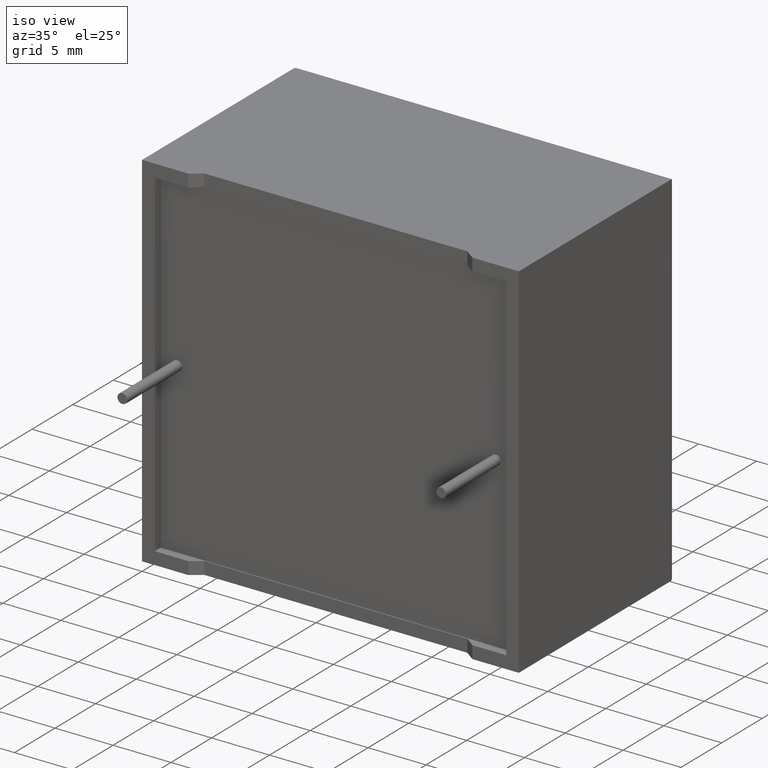
[diagram: clean part render]
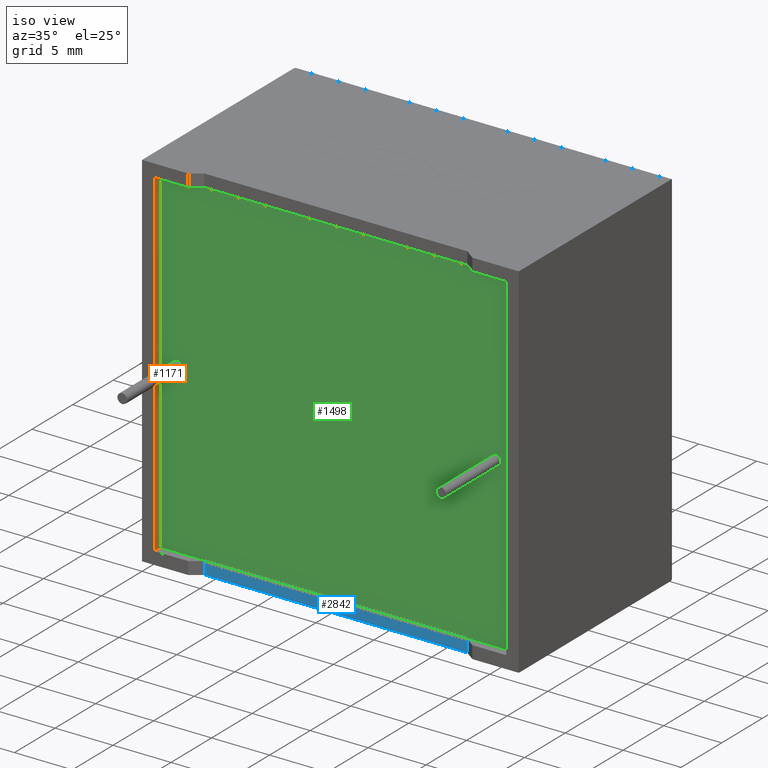
[diagram: same view with three faces highlighted in distinct colors, each labeled with its STEP entity id]
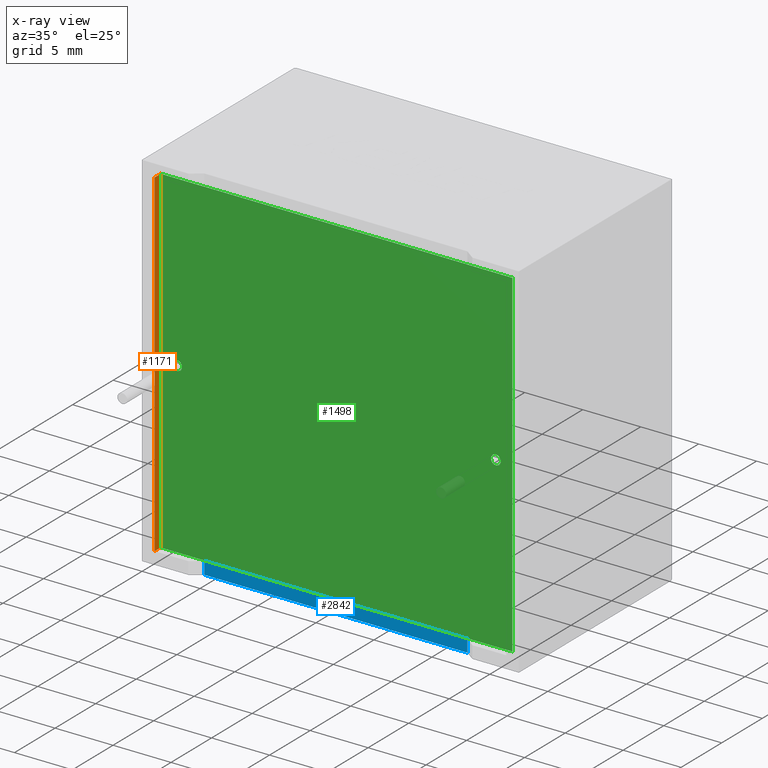
[diagram: x-ray of the same camera — body ghosted, the three highlighted faces saturated]
A machine part, iso view with three faces highlighted in distinct colors.
The next image is the same camera in x-ray (body ghosted, the three faces saturated) — at least one of them is partly hidden behind the body in this view.
Their STEP definitions:

[orange] entity #1171 — the highlighted planar face has unit normal (-1, 0, 0).
#64 = VERTEX_POINT ( 'NONE', #1756 ) ;
#82 = VECTOR ( 'NONE', #739, 1000.000000000000000 ) ;
#83 = VERTEX_POINT ( 'NONE', #2488 ) ;
#119 = ORIENTED_EDGE ( 'NONE', *, *, #324, .F. ) ;
#133 = FACE_OUTER_BOUND ( 'NONE', #1130, .T. ) ;
#219 = AXIS2_PLACEMENT_3D ( 'NONE', #253, #720, #938 ) ;
#253 = CARTESIAN_POINT ( 'NONE',  ( 1.083333225000000100, 0.7500000000000000000, 30.21666677499999700 ) ) ;
#269 = CARTESIAN_POINT ( 'NONE',  ( 1.083333225000000100, 0.0000000000000000000, 30.21666677499999700 ) ) ;
#280 = EDGE_CURVE ( 'NONE', #2845, #64, #1138, .T. ) ;
#324 = EDGE_CURVE ( 'NONE', #83, #64, #1364, .T. ) ;
#391 = LINE ( 'NONE', #2105, #1760 ) ;
#535 = CARTESIAN_POINT ( 'NONE',  ( 1.083333225000000100, 0.7500000000000000000, 30.21666677499999700 ) ) ;
#642 = LINE ( 'NONE', #535, #82 ) ;
#660 = VECTOR ( 'NONE', #2010, 1000.000000000000000 ) ;
#720 = DIRECTION ( 'NONE',  ( -1.000000000000000000, 0.0000000000000000000, 0.0000000000000000000 ) ) ;
#739 = DIRECTION ( 'NONE',  ( -0.0000000000000000000, -1.000000000000000000, -0.0000000000000000000 ) ) ;
#938 = DIRECTION ( 'NONE',  ( 0.0000000000000000000, 0.0000000000000000000, 1.000000000000000000 ) ) ;
#967 = ORIENTED_EDGE ( 'NONE', *, *, #1086, .F. ) ;
#1086 = EDGE_CURVE ( 'NONE', #2587, #83, #391, .T. ) ;
#1130 = EDGE_LOOP ( 'NONE', ( #1185, #119, #967, #2841 ) ) ;
#1138 = LINE ( 'NONE', #1724, #660 ) ;
#1171 = ADVANCED_FACE ( 'NONE', ( #133 ), #1664, .F. ) ;
#1185 = ORIENTED_EDGE ( 'NONE', *, *, #280, .T. ) ;
#1364 = LINE ( 'NONE', #1995, #1766 ) ;
#1664 = PLANE ( 'NONE',  #219 ) ;
#1724 = CARTESIAN_POINT ( 'NONE',  ( 1.083333225000000100, 0.0000000000000000000, 30.21666677499999700 ) ) ;
#1756 = CARTESIAN_POINT ( 'NONE',  ( 1.083333225000000100, 0.0000000000000000000, 1.083333225000000100 ) ) ;
#1760 = VECTOR ( 'NONE', #2566, 1000.000000000000000 ) ;
#1766 = VECTOR ( 'NONE', #2483, 1000.000000000000000 ) ;
#1952 = EDGE_CURVE ( 'NONE', #2587, #2845, #642, .T. ) ;
#1995 = CARTESIAN_POINT ( 'NONE',  ( 1.083333225000000100, 0.7500000000000000000, 1.083333225000000100 ) ) ;
#2010 = DIRECTION ( 'NONE',  ( 0.0000000000000000000, 0.0000000000000000000, -1.000000000000000000 ) ) ;
#2105 = CARTESIAN_POINT ( 'NONE',  ( 1.083333225000000100, 0.7500000000000000000, 30.21666677499999700 ) ) ;
#2244 = CARTESIAN_POINT ( 'NONE',  ( 1.083333225000000100, 0.7500000000000000000, 30.21666677499999700 ) ) ;
#2483 = DIRECTION ( 'NONE',  ( -0.0000000000000000000, -1.000000000000000000, -0.0000000000000000000 ) ) ;
#2488 = CARTESIAN_POINT ( 'NONE',  ( 1.083333225000000100, 0.7500000000000000000, 1.083333225000000100 ) ) ;
#2566 = DIRECTION ( 'NONE',  ( 0.0000000000000000000, 0.0000000000000000000, -1.000000000000000000 ) ) ;
#2587 = VERTEX_POINT ( 'NONE', #2244 ) ;
#2841 = ORIENTED_EDGE ( 'NONE', *, *, #1952, .T. ) ;
#2845 = VERTEX_POINT ( 'NONE', #269 ) ;

[blue] entity #2842 — the highlighted planar face has unit normal (-0, 1, 0).
#8 = EDGE_CURVE ( 'NONE', #2476, #2908, #207, .T. ) ;
#14 = DIRECTION ( 'NONE',  ( -0.0000000000000000000, -0.0000000000000000000, 1.000000000000000000 ) ) ;
#39 = DIRECTION ( 'NONE',  ( -1.242093791113138400E-016, 1.000000000000000000, 0.0000000000000000000 ) ) ;
#158 = LINE ( 'NONE', #702, #384 ) ;
#207 = LINE ( 'NONE', #1478, #2787 ) ;
#261 = ORIENTED_EDGE ( 'NONE', *, *, #8, .F. ) ;
#301 = CARTESIAN_POINT ( 'NONE',  ( 16.25000000000000000, 0.6620160000000018300, 0.0000000000000000000 ) ) ;
#384 = VECTOR ( 'NONE', #14, 1000.000000000000000 ) ;
#702 = CARTESIAN_POINT ( 'NONE',  ( 27.59747499999999900, 0.6620160000000003800, 0.0000000000000000000 ) ) ;
#738 = LINE ( 'NONE', #2049, #1046 ) ;
#758 = CARTESIAN_POINT ( 'NONE',  ( 27.59747499999999900, 0.6620160000000003800, 1.083333224999999400 ) ) ;
#822 = VERTEX_POINT ( 'NONE', #884 ) ;
#884 = CARTESIAN_POINT ( 'NONE',  ( 27.59747499999999900, 0.6620160000000003800, 0.0000000000000000000 ) ) ;
#1046 = VECTOR ( 'NONE', #2722, 1000.000000000000000 ) ;
#1197 = ORIENTED_EDGE ( 'NONE', *, *, #1809, .T. ) ;
#1255 = DIRECTION ( 'NONE',  ( -1.000000000000000000, -1.242093791113138400E-016, 0.0000000000000000000 ) ) ;
#1260 = ORIENTED_EDGE ( 'NONE', *, *, #2507, .F. ) ;
#1266 = DIRECTION ( 'NONE',  ( 1.000000000000000000, 1.242093791113138400E-016, -2.859434280636139900E-017 ) ) ;
#1478 = CARTESIAN_POINT ( 'NONE',  ( 1.083333225000000100, 0.6620159999999999400, 1.083333225000000100 ) ) ;
#1522 = EDGE_LOOP ( 'NONE', ( #2263, #1260, #1197, #261 ) ) ;
#1556 = VECTOR ( 'NONE', #2936, 1000.000000000000000 ) ;
#1809 = EDGE_CURVE ( 'NONE', #822, #2908, #158, .T. ) ;
#2049 = CARTESIAN_POINT ( 'NONE',  ( 4.902525000000001600, 0.6620160000000003800, 0.0000000000000000000 ) ) ;
#2096 = VERTEX_POINT ( 'NONE', #2987 ) ;
#2124 = PLANE ( 'NONE',  #2335 ) ;
#2263 = ORIENTED_EDGE ( 'NONE', *, *, #2408, .F. ) ;
#2324 = LINE ( 'NONE', #2982, #1556 ) ;
#2335 = AXIS2_PLACEMENT_3D ( 'NONE', #301, #39, #1255 ) ;
#2408 = EDGE_CURVE ( 'NONE', #2096, #2476, #738, .T. ) ;
#2476 = VERTEX_POINT ( 'NONE', #2970 ) ;
#2507 = EDGE_CURVE ( 'NONE', #822, #2096, #2324, .T. ) ;
#2722 = DIRECTION ( 'NONE',  ( -0.0000000000000000000, -0.0000000000000000000, 1.000000000000000000 ) ) ;
#2787 = VECTOR ( 'NONE', #1266, 1000.000000000000000 ) ;
#2842 = ADVANCED_FACE ( 'NONE', ( #2869 ), #2124, .F. ) ;
#2869 = FACE_OUTER_BOUND ( 'NONE', #1522, .T. ) ;
#2908 = VERTEX_POINT ( 'NONE', #758 ) ;
#2936 = DIRECTION ( 'NONE',  ( -1.000000000000000000, -1.242093791113138400E-016, 0.0000000000000000000 ) ) ;
#2970 = CARTESIAN_POINT ( 'NONE',  ( 4.902525000000001600, 0.6620160000000003800, 1.083333224999999600 ) ) ;
#2982 = CARTESIAN_POINT ( 'NONE',  ( 16.25000000000000000, 0.6620160000000018300, 0.0000000000000000000 ) ) ;
#2987 = CARTESIAN_POINT ( 'NONE',  ( 4.902525000000001600, 0.6620160000000003800, 0.0000000000000000000 ) ) ;

[green] entity #1498 — the highlighted planar face has unit normal (0, -1, 0).
#32 = CARTESIAN_POINT ( 'NONE',  ( 31.41666677500000300, 0.7500000000000000000, 1.083333224999999200 ) ) ;
#40 = ORIENTED_EDGE ( 'NONE', *, *, #1601, .T. ) ;
#66 = EDGE_CURVE ( 'NONE', #2591, #2587, #1729, .T. ) ;
#83 = VERTEX_POINT ( 'NONE', #2488 ) ;
#121 = CARTESIAN_POINT ( 'NONE',  ( 31.41666677500000300, 0.7500000000000000000, 30.21666677500000000 ) ) ;
#129 = CARTESIAN_POINT ( 'NONE',  ( 30.00000000000000000, 0.7499999999999997800, 16.07500000000000300 ) ) ;
#194 = EDGE_LOOP ( 'NONE', ( #1738, #40, #1276, #846 ) ) ;
#230 = CARTESIAN_POINT ( 'NONE',  ( 30.00000000000000000, 0.7499999999999997800, 15.65000000000000000 ) ) ;
#245 = ORIENTED_EDGE ( 'NONE', *, *, #349, .F. ) ;
#260 = AXIS2_PLACEMENT_3D ( 'NONE', #2672, #1970, #832 ) ;
#325 = ORIENTED_EDGE ( 'NONE', *, *, #2746, .F. ) ;
#349 = EDGE_CURVE ( 'NONE', #996, #1557, #1362, .T. ) ;
#391 = LINE ( 'NONE', #2105, #1760 ) ;
#406 = DIRECTION ( 'NONE',  ( 1.000000000000000000, 0.0000000000000000000, -2.859434280636139900E-017 ) ) ;
#512 = VERTEX_POINT ( 'NONE', #32 ) ;
#586 = DIRECTION ( 'NONE',  ( 0.0000000000000000000, -1.000000000000000000, 0.0000000000000000000 ) ) ;
#650 = EDGE_CURVE ( 'NONE', #898, #2971, #1835, .T. ) ;
#697 = DIRECTION ( 'NONE',  ( 0.0000000000000000000, -1.000000000000000000, 0.0000000000000000000 ) ) ;
#832 = DIRECTION ( 'NONE',  ( 0.0000000000000000000, 0.0000000000000000000, -1.000000000000000000 ) ) ;
#846 = ORIENTED_EDGE ( 'NONE', *, *, #66, .T. ) ;
#871 = DIRECTION ( 'NONE',  ( 0.0000000000000000000, -1.000000000000000000, 0.0000000000000000000 ) ) ;
#898 = VERTEX_POINT ( 'NONE', #129 ) ;
#924 = CIRCLE ( 'NONE', #2862, 0.4250000000000000400 ) ;
#962 = VECTOR ( 'NONE', #2039, 1000.000000000000000 ) ;
#996 = VERTEX_POINT ( 'NONE', #2097 ) ;
#1018 = FACE_OUTER_BOUND ( 'NONE', #194, .T. ) ;
#1053 = PLANE ( 'NONE',  #1215 ) ;
#1086 = EDGE_CURVE ( 'NONE', #2587, #83, #391, .T. ) ;
#1135 = DIRECTION ( 'NONE',  ( 0.0000000000000000000, 0.0000000000000000000, -1.000000000000000000 ) ) ;
#1176 = VECTOR ( 'NONE', #2682, 1000.000000000000000 ) ;
#1215 = AXIS2_PLACEMENT_3D ( 'NONE', #2979, #1582, #2761 ) ;
#1276 = ORIENTED_EDGE ( 'NONE', *, *, #2448, .T. ) ;
#1278 = DIRECTION ( 'NONE',  ( 0.0000000000000000000, 0.0000000000000000000, -1.000000000000000000 ) ) ;
#1362 = CIRCLE ( 'NONE', #2020, 0.4250000000000000400 ) ;
#1456 = EDGE_LOOP ( 'NONE', ( #2993, #245 ) ) ;
#1498 = ADVANCED_FACE ( 'NONE', ( #2226, #1018, #1897 ), #1053, .T. ) ;
#1557 = VERTEX_POINT ( 'NONE', #1814 ) ;
#1563 = CARTESIAN_POINT ( 'NONE',  ( 31.41666677500000300, 0.7500000000000000000, 1.083333224999999200 ) ) ;
#1582 = DIRECTION ( 'NONE',  ( 0.0000000000000000000, -1.000000000000000000, 0.0000000000000000000 ) ) ;
#1591 = CIRCLE ( 'NONE', #260, 0.4250000000000000400 ) ;
#1601 = EDGE_CURVE ( 'NONE', #83, #512, #2781, .T. ) ;
#1609 = ORIENTED_EDGE ( 'NONE', *, *, #650, .F. ) ;
#1729 = LINE ( 'NONE', #2877, #1176 ) ;
#1738 = ORIENTED_EDGE ( 'NONE', *, *, #1086, .T. ) ;
#1760 = VECTOR ( 'NONE', #2566, 1000.000000000000000 ) ;
#1805 = CARTESIAN_POINT ( 'NONE',  ( 2.500000000000000400, 0.7500000000000000000, 15.65000000000000000 ) ) ;
#1814 = CARTESIAN_POINT ( 'NONE',  ( 2.500000000000000400, 0.7500000000000000000, 16.07500000000000300 ) ) ;
#1834 = DIRECTION ( 'NONE',  ( 0.0000000000000000000, 0.0000000000000000000, -1.000000000000000000 ) ) ;
#1835 = CIRCLE ( 'NONE', #2254, 0.4250000000000000400 ) ;
#1897 = FACE_BOUND ( 'NONE', #1456, .T. ) ;
#1970 = DIRECTION ( 'NONE',  ( 0.0000000000000000000, -1.000000000000000000, 0.0000000000000000000 ) ) ;
#2006 = CARTESIAN_POINT ( 'NONE',  ( 30.00000000000000000, 0.7499999999999997800, 15.65000000000000000 ) ) ;
#2020 = AXIS2_PLACEMENT_3D ( 'NONE', #1805, #871, #1135 ) ;
#2039 = DIRECTION ( 'NONE',  ( 0.0000000000000000000, 0.0000000000000000000, 1.000000000000000000 ) ) ;
#2097 = CARTESIAN_POINT ( 'NONE',  ( 2.500000000000000400, 0.7500000000000000000, 15.22500000000000100 ) ) ;
#2105 = CARTESIAN_POINT ( 'NONE',  ( 1.083333225000000100, 0.7500000000000000000, 30.21666677499999700 ) ) ;
#2214 = LINE ( 'NONE', #1563, #962 ) ;
#2226 = FACE_BOUND ( 'NONE', #2943, .T. ) ;
#2244 = CARTESIAN_POINT ( 'NONE',  ( 1.083333225000000100, 0.7500000000000000000, 30.21666677499999700 ) ) ;
#2254 = AXIS2_PLACEMENT_3D ( 'NONE', #2006, #586, #1278 ) ;
#2448 = EDGE_CURVE ( 'NONE', #512, #2591, #2214, .T. ) ;
#2488 = CARTESIAN_POINT ( 'NONE',  ( 1.083333225000000100, 0.7500000000000000000, 1.083333225000000100 ) ) ;
#2545 = CARTESIAN_POINT ( 'NONE',  ( 1.083333225000000100, 0.7500000000000000000, 1.083333225000000100 ) ) ;
#2566 = DIRECTION ( 'NONE',  ( 0.0000000000000000000, 0.0000000000000000000, -1.000000000000000000 ) ) ;
#2587 = VERTEX_POINT ( 'NONE', #2244 ) ;
#2591 = VERTEX_POINT ( 'NONE', #121 ) ;
#2672 = CARTESIAN_POINT ( 'NONE',  ( 2.500000000000000400, 0.7500000000000000000, 15.65000000000000000 ) ) ;
#2682 = DIRECTION ( 'NONE',  ( -1.000000000000000000, 0.0000000000000000000, -1.143773712254456000E-016 ) ) ;
#2691 = CARTESIAN_POINT ( 'NONE',  ( 30.00000000000000000, 0.7499999999999997800, 15.22500000000000100 ) ) ;
#2746 = EDGE_CURVE ( 'NONE', #2971, #898, #924, .T. ) ;
#2761 = DIRECTION ( 'NONE',  ( 0.0000000000000000000, -0.0000000000000000000, -1.000000000000000000 ) ) ;
#2781 = LINE ( 'NONE', #2545, #2887 ) ;
#2862 = AXIS2_PLACEMENT_3D ( 'NONE', #230, #697, #1834 ) ;
#2877 = CARTESIAN_POINT ( 'NONE',  ( 31.41666677500000300, 0.7500000000000000000, 30.21666677500000000 ) ) ;
#2887 = VECTOR ( 'NONE', #406, 1000.000000000000000 ) ;
#2943 = EDGE_LOOP ( 'NONE', ( #1609, #325 ) ) ;
#2971 = VERTEX_POINT ( 'NONE', #2691 ) ;
#2979 = CARTESIAN_POINT ( 'NONE',  ( 0.0000000000000000000, 0.7500000000000000000, 0.0000000000000000000 ) ) ;
#2993 = ORIENTED_EDGE ( 'NONE', *, *, #3051, .F. ) ;
#3051 = EDGE_CURVE ( 'NONE', #1557, #996, #1591, .T. ) ;